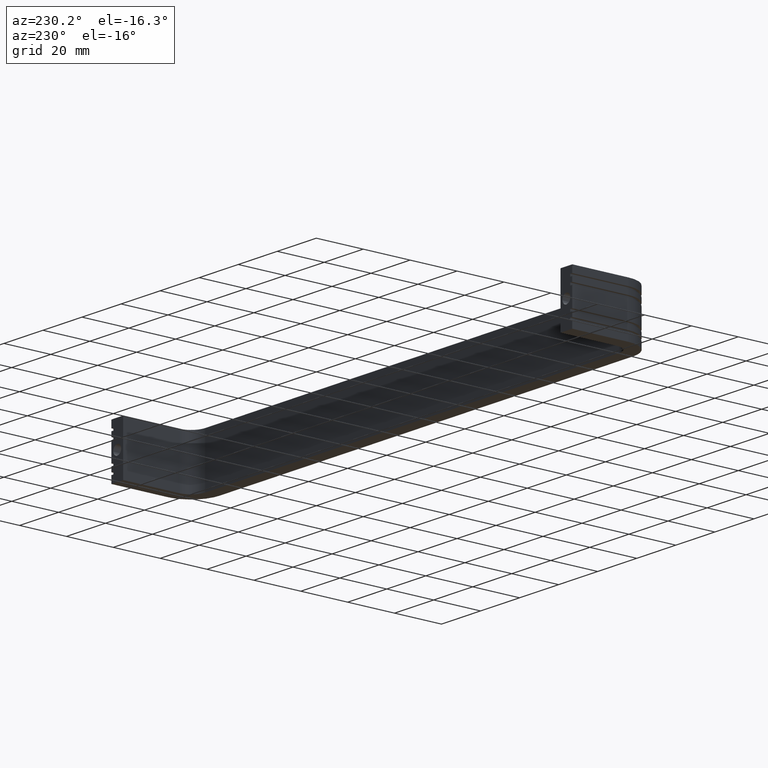
[diagram: clean part render]
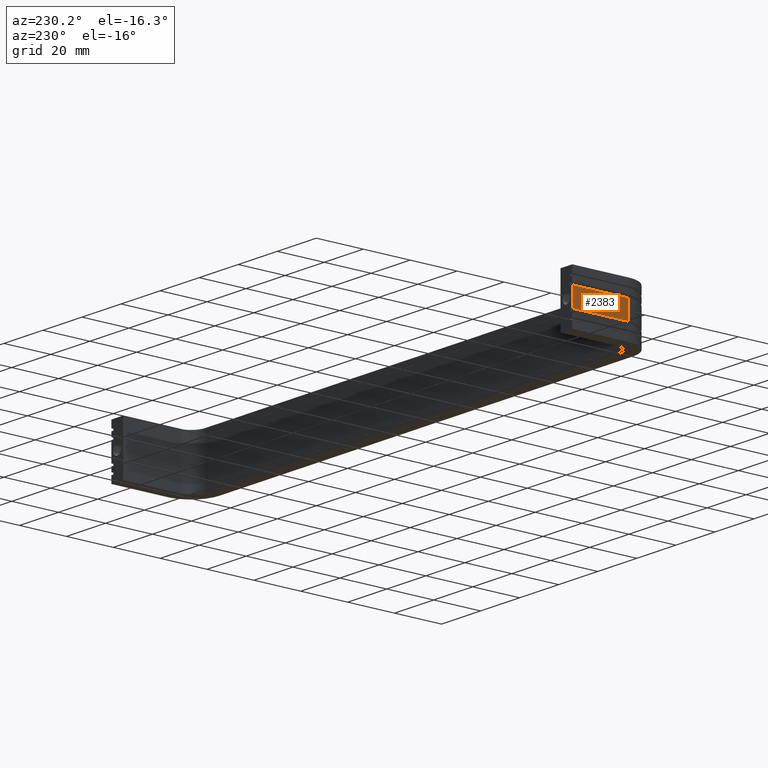
[diagram: same view with one face highlighted and labeled with its STEP entity id]
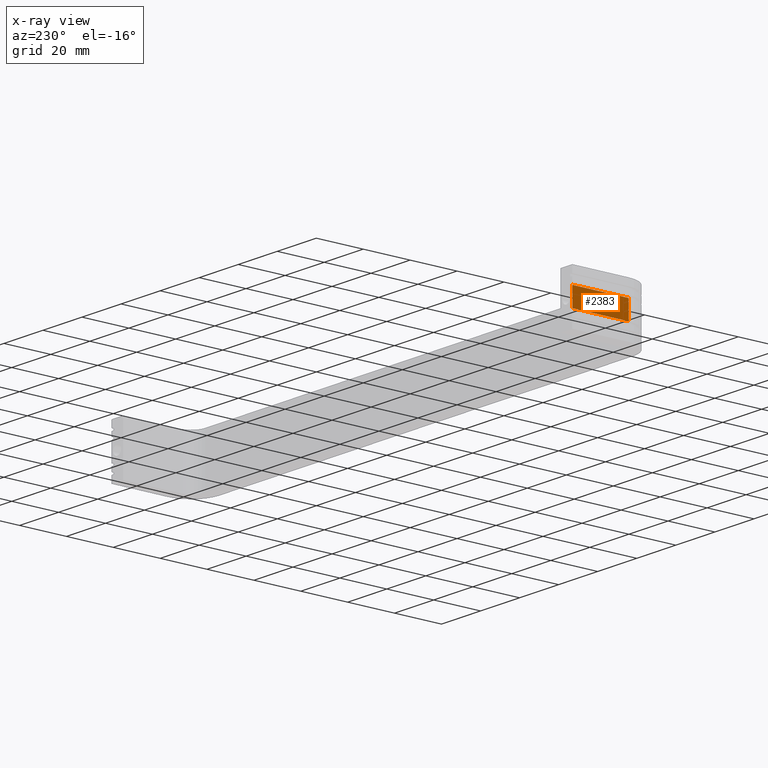
[diagram: x-ray of the same camera — body ghosted, the highlighted face saturated]
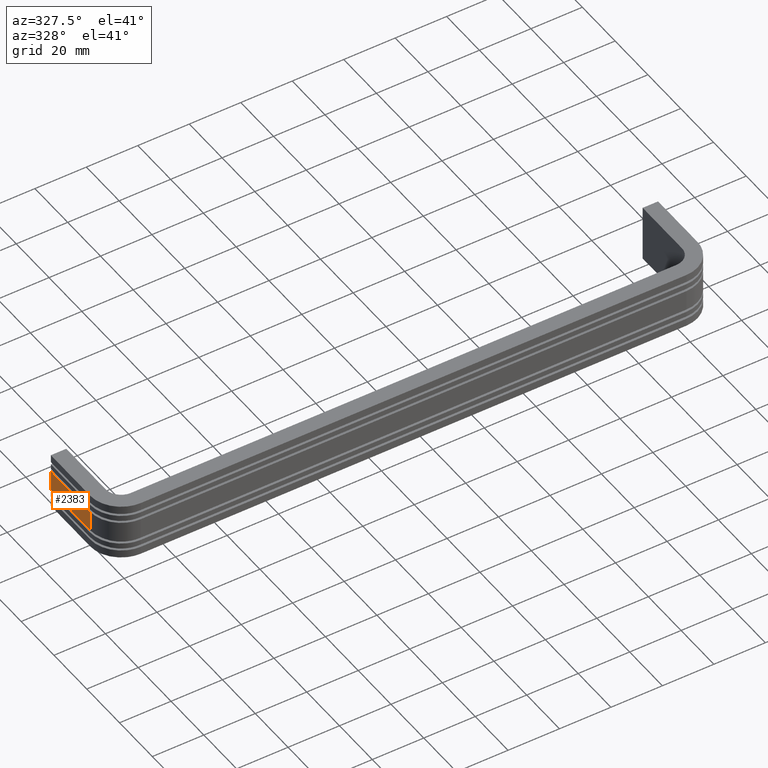
[diagram: same view with one face highlighted and labeled with its STEP entity id]
A machine part, auxiliary view. The second image highlights one B-rep face of the part: STEP entity #2383.
The next image is the same camera in x-ray: the body ghosted, the highlighted face saturated — about 0% of this face is hidden behind the body in this view.
A second angle (auxiliary view) of the same face is appended — the face is thin or edge-on in the first view.
In plain terms, the highlighted face is a freeform B-spline surface patch.
Its self-contained STEP definition (entity closure, byte-faithful):
#1828=CARTESIAN_POINT('',(-3.0,-24.0,4.0));
#1829=VERTEX_POINT('',#1828);
#1843=CARTESIAN_POINT('',(-3.0,-24.0,-4.0));
#1844=VERTEX_POINT('',#1843);
#1845=CARTESIAN_POINT('',(-3.0,-24.0,-4.0));
#1846=CARTESIAN_POINT('',(-3.0,-24.0,4.0));
#1847=QUASI_UNIFORM_CURVE('',1,(#1845,#1846),.UNSPECIFIED.,.F.,.U.);
#1848=EDGE_CURVE('',#1844,#1829,#1847,.T.);
#2334=CARTESIAN_POINT('',(-3.0,0.0,4.0));
#2335=VERTEX_POINT('',#2334);
#2341=CARTESIAN_POINT('',(-3.0,0.0,4.0));
#2342=CARTESIAN_POINT('',(-3.0,-24.0,4.0));
#2343=QUASI_UNIFORM_CURVE('',1,(#2341,#2342),.UNSPECIFIED.,.F.,.U.);
#2344=EDGE_CURVE('',#2335,#1829,#2343,.T.);
#2362=CARTESIAN_POINT('',(-3.0,-25.198799953483348,4.399599984494448));
#2363=CARTESIAN_POINT('',(-3.0,-25.198799953483341,-4.399600199071169));
#2364=CARTESIAN_POINT('',(-3.0,1.198800597213507,4.399599984494448));
#2365=CARTESIAN_POINT('',(-3.0,1.198800597213507,-4.399600199071169));
#2366=B_SPLINE_SURFACE_WITH_KNOTS('',1,1,((#2362,#2364),(#2363,#2365)),.UNSPECIFIED.,.F.,.F.,.U.,(2,2),(2,2),(0.0,8.799200183565617),(0.0,26.397600550696851),.UNSPECIFIED.);
#2367=ORIENTED_EDGE('',*,*,#2344,.F.);
#2368=CARTESIAN_POINT('',(-3.0,0.0,-4.0));
#2369=VERTEX_POINT('',#2368);
#2370=CARTESIAN_POINT('',(-3.0,0.0,-4.0));
#2371=CARTESIAN_POINT('',(-3.0,0.0,4.0));
#2372=QUASI_UNIFORM_CURVE('',1,(#2370,#2371),.UNSPECIFIED.,.F.,.U.);
#2373=EDGE_CURVE('',#2369,#2335,#2372,.T.);
#2374=ORIENTED_EDGE('',*,*,#2373,.F.);
#2375=CARTESIAN_POINT('',(-3.0,0.0,-4.0));
#2376=CARTESIAN_POINT('',(-3.0,-24.0,-4.0));
#2377=QUASI_UNIFORM_CURVE('',1,(#2375,#2376),.UNSPECIFIED.,.F.,.U.);
#2378=EDGE_CURVE('',#2369,#1844,#2377,.T.);
#2379=ORIENTED_EDGE('',*,*,#2378,.T.);
#2380=ORIENTED_EDGE('',*,*,#1848,.T.);
#2381=EDGE_LOOP('',(#2367,#2374,#2379,#2380));
#2382=FACE_OUTER_BOUND('',#2381,.T.);
#2383=ADVANCED_FACE('',(#2382),#2366,.F.);